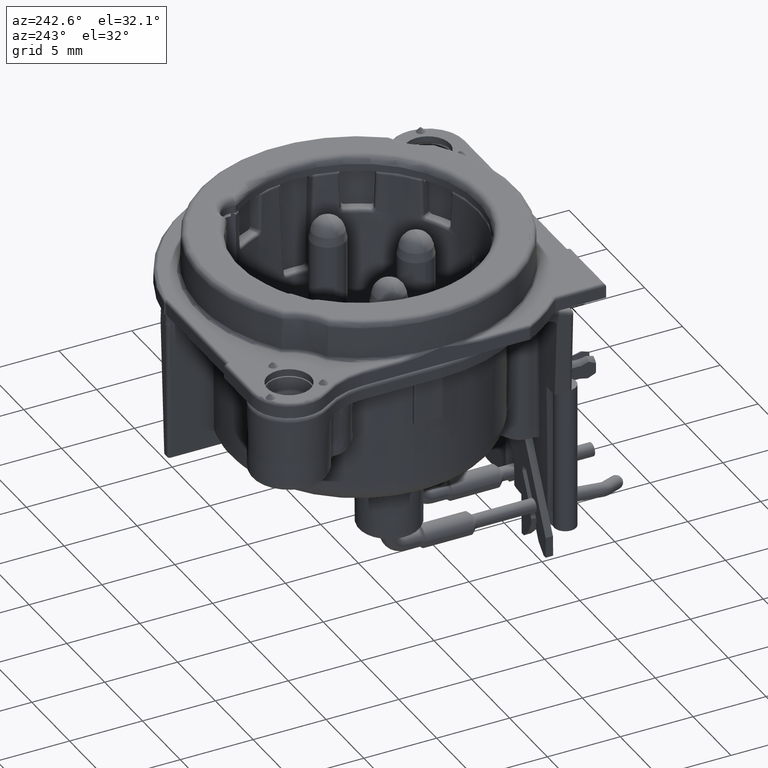
[diagram: clean part render]
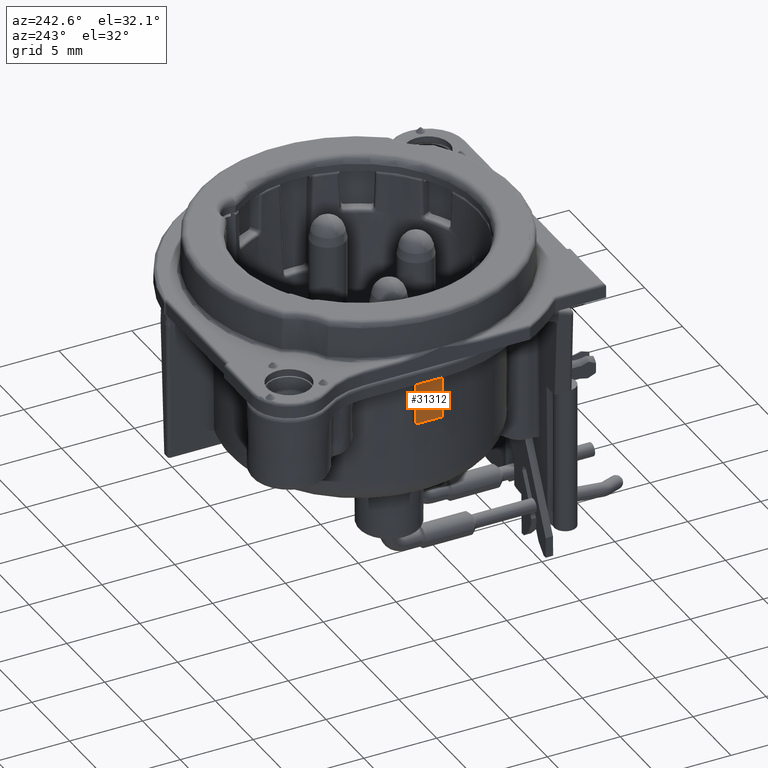
[diagram: same view with one face highlighted and labeled with its STEP entity id]
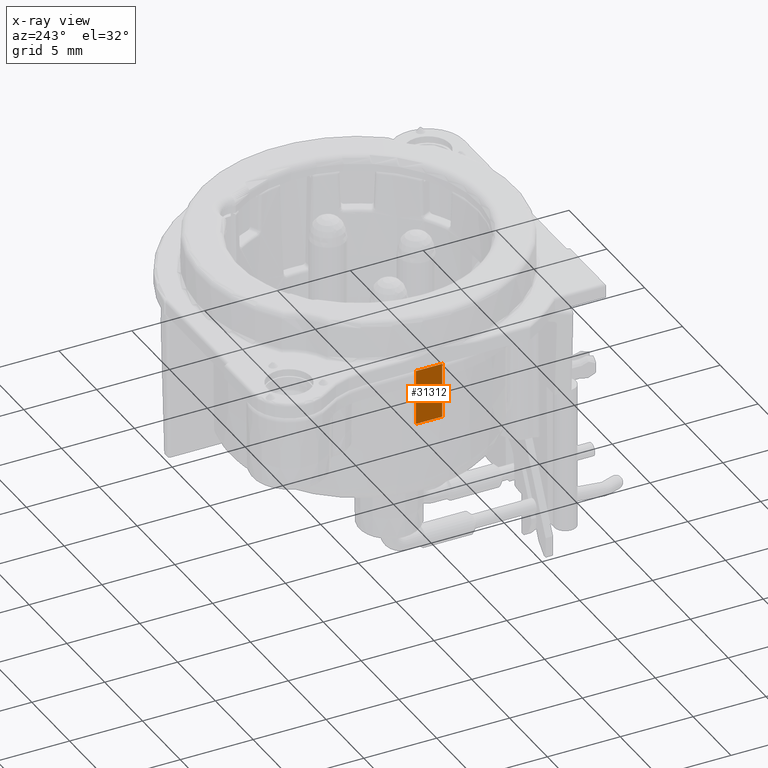
[diagram: x-ray of the same camera — body ghosted, the highlighted face saturated]
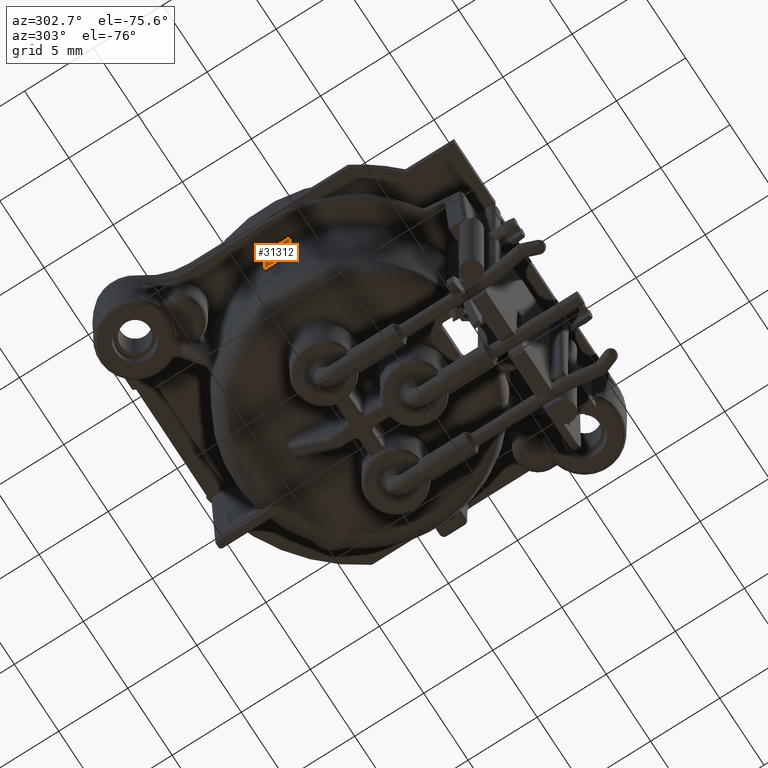
[diagram: same view with one face highlighted and labeled with its STEP entity id]
A machine part, auxiliary view. The second image highlights one B-rep face of the part: STEP entity #31312.
The next image is the same camera in x-ray: the body ghosted, the highlighted face saturated — about 0% of this face is hidden behind the body in this view.
A second angle (auxiliary view) of the same face is appended — the face is thin or edge-on in the first view.
In plain terms, the highlighted planar face has unit normal (-1, 0, 0).
Its self-contained STEP definition (entity closure, byte-faithful):
#5513=DIRECTION('',(0.E0,-3.099751449672E-10,1.E0));
#5514=VECTOR('',#5513,3.8E0);
#5515=CARTESIAN_POINT('',(-9.351729962894E0,9.E-1,-4.9E0));
#5516=LINE('',#5515,#5514);
#5517=DIRECTION('',(0.E0,1.E0,0.E0));
#5518=VECTOR('',#5517,1.799999998948E0);
#5519=CARTESIAN_POINT('',(-9.351729962894E0,-9.000000001264E-1,-1.1E0));
#5520=LINE('',#5519,#5518);
#5521=DIRECTION('',(0.E0,-3.326163905707E-11,1.E0));
#5522=VECTOR('',#5521,3.8E0);
#5523=CARTESIAN_POINT('',(-9.351729962894E0,-9.E-1,-4.9E0));
#5524=LINE('',#5523,#5522);
#5525=DIRECTION('',(0.E0,1.E0,0.E0));
#5526=VECTOR('',#5525,1.8E0);
#5527=CARTESIAN_POINT('',(-9.351729962894E0,-9.E-1,-4.9E0));
#5528=LINE('',#5527,#5526);
#22566=CARTESIAN_POINT('',(-9.351729962894E0,9.E-1,-4.9E0));
#22567=CARTESIAN_POINT('',(-9.351729962894E0,8.999999988221E-1,-1.1E0));
#22568=VERTEX_POINT('',#22566);
#22569=VERTEX_POINT('',#22567);
#22570=CARTESIAN_POINT('',(-9.351729962894E0,-9.E-1,-4.9E0));
#22571=VERTEX_POINT('',#22570);
#22576=CARTESIAN_POINT('',(-9.351729962894E0,-9.000000001264E-1,-1.1E0));
#22577=VERTEX_POINT('',#22576);
#31300=CARTESIAN_POINT('',(-9.351729962894E0,-1.E0,-1.E0));
#31301=DIRECTION('',(-1.E0,0.E0,0.E0));
#31302=DIRECTION('',(0.E0,1.E0,0.E0));
#31303=AXIS2_PLACEMENT_3D('',#31300,#31301,#31302);
#31304=PLANE('',#31303);
#31305=ORIENTED_EDGE('',*,*,#31183,.T.);
#31306=ORIENTED_EDGE('',*,*,#31262,.F.);
#31307=ORIENTED_EDGE('',*,*,#31288,.F.);
#31309=ORIENTED_EDGE('',*,*,#31308,.T.);
#31310=EDGE_LOOP('',(#31305,#31306,#31307,#31309));
#31311=FACE_OUTER_BOUND('',#31310,.F.);
#31312=ADVANCED_FACE('',(#31311),#31304,.T.);
#31183=EDGE_CURVE('',#22568,#22569,#5516,.T.);
#31262=EDGE_CURVE('',#22577,#22569,#5520,.T.);
#31288=EDGE_CURVE('',#22571,#22577,#5524,.T.);
#31308=EDGE_CURVE('',#22571,#22568,#5528,.T.);